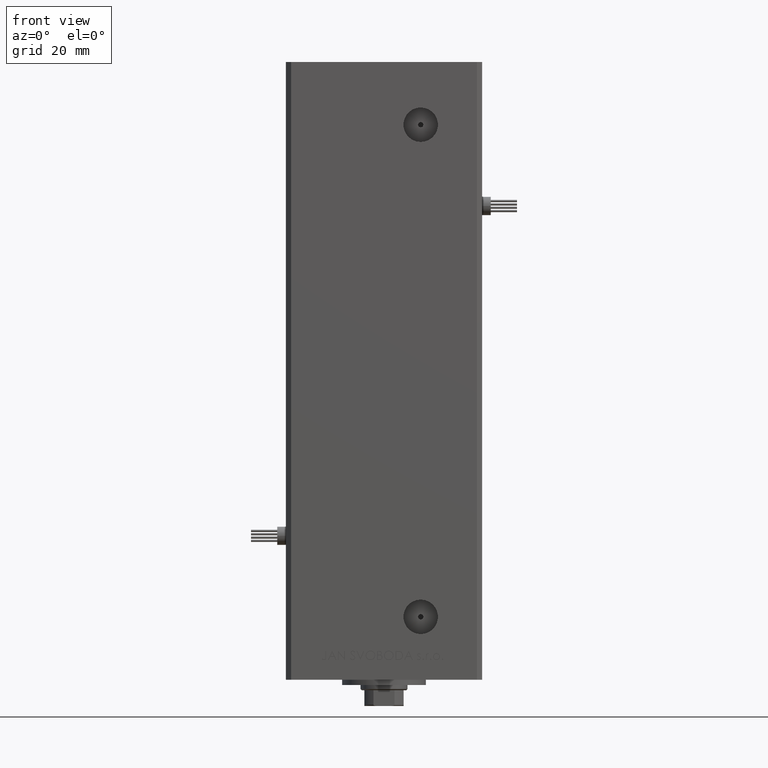
[diagram: clean part render]
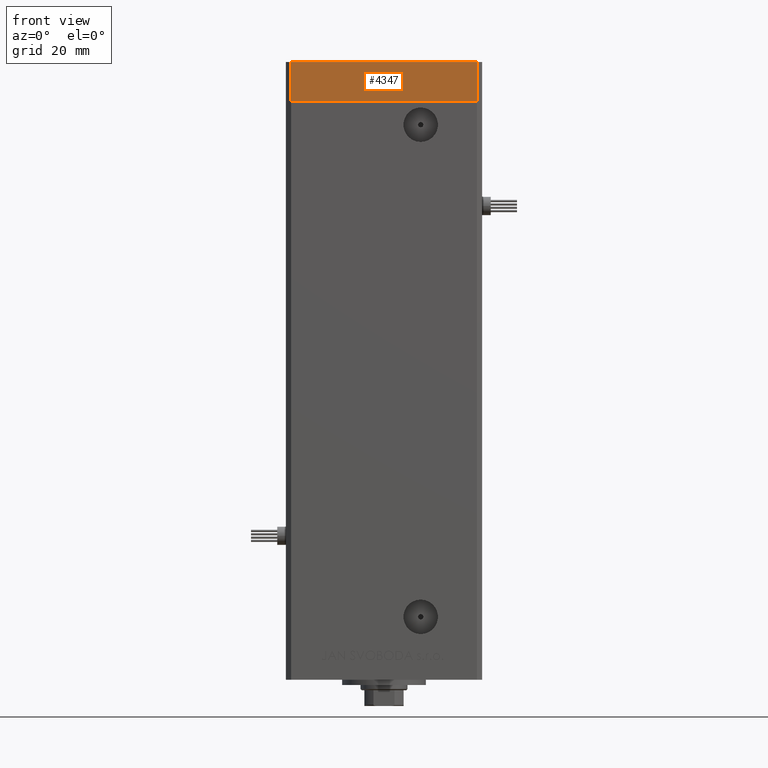
[diagram: same view with one face highlighted and labeled with its STEP entity id]
A machine part, front view. The second image highlights one B-rep face of the part: STEP entity #4347.
In plain terms, the highlighted planar face has unit normal (0, -1, 0).
Its self-contained STEP definition (entity closure, byte-faithful):
#3597 = EDGE_CURVE ( 'NONE', #50137, #19110, #33595, .T. ) ;
#4347 = ADVANCED_FACE ( 'NONE', ( #35753 ), #23215, .T. ) ;
#5008 = CARTESIAN_POINT ( 'NONE',  ( -35.49999999999998579, -32.50000000000001421, -15.00000000000000000 ) ) ;
#5056 = CARTESIAN_POINT ( 'NONE',  ( -35.49999999999998579, -32.50000000000001421, -15.00000000000000000 ) ) ;
#6940 = EDGE_LOOP ( 'NONE', ( #50473, #11890, #9169, #8636 ) ) ;
#7211 = DIRECTION ( 'NONE',  ( 9.773090005503140331E-17, -1.000000000000000000, 0.000000000000000000 ) ) ;
#8636 = ORIENTED_EDGE ( 'NONE', *, *, #3597, .T. ) ;
#9169 = ORIENTED_EDGE ( 'NONE', *, *, #29105, .T. ) ;
#9218 = VECTOR ( 'NONE', #29860, 1000.000000000000000 ) ;
#11890 = ORIENTED_EDGE ( 'NONE', *, *, #25095, .F. ) ;
#13592 = LINE ( 'NONE', #5056, #9218 ) ;
#18641 = VECTOR ( 'NONE', #20877, 1000.000000000000000 ) ;
#19110 = VERTEX_POINT ( 'NONE', #32257 ) ;
#20877 = DIRECTION ( 'NONE',  ( 1.000000000000000000, 9.773090005503140331E-17, 0.000000000000000000 ) ) ;
#21945 = VECTOR ( 'NONE', #38787, 1000.000000000000000 ) ;
#22554 = CARTESIAN_POINT ( 'NONE',  ( 35.50000000000000711, -32.50000000000000711, -15.00000000000000000 ) ) ;
#23215 = PLANE ( 'NONE',  #36783 ) ;
#25095 = EDGE_CURVE ( 'NONE', #49010, #36517, #41985, .T. ) ;
#25465 = CARTESIAN_POINT ( 'NONE',  ( -35.49999999999998579, -32.50000000000001421, 0.000000000000000000 ) ) ;
#26520 = CARTESIAN_POINT ( 'NONE',  ( -35.49999999999998579, -32.50000000000001421, -15.00000000000000000 ) ) ;
#27214 = EDGE_CURVE ( 'NONE', #36517, #19110, #41150, .T. ) ;
#28207 = VECTOR ( 'NONE', #30359, 1000.000000000000000 ) ;
#29105 = EDGE_CURVE ( 'NONE', #49010, #50137, #13592, .T. ) ;
#29860 = DIRECTION ( 'NONE',  ( 1.000000000000000000, 9.773090005503140331E-17, 0.000000000000000000 ) ) ;
#30359 = DIRECTION ( 'NONE',  ( 0.000000000000000000, 0.000000000000000000, 1.000000000000000000 ) ) ;
#31489 = CARTESIAN_POINT ( 'NONE',  ( -35.49999999999998579, -32.50000000000001421, -15.00000000000000000 ) ) ;
#32257 = CARTESIAN_POINT ( 'NONE',  ( 35.50000000000000711, -32.50000000000000711, 0.000000000000000000 ) ) ;
#33595 = LINE ( 'NONE', #42344, #28207 ) ;
#35753 = FACE_OUTER_BOUND ( 'NONE', #6940, .T. ) ;
#36517 = VERTEX_POINT ( 'NONE', #25465 ) ;
#36783 = AXIS2_PLACEMENT_3D ( 'NONE', #31489, #7211, #38954 ) ;
#38787 = DIRECTION ( 'NONE',  ( 0.000000000000000000, 0.000000000000000000, 1.000000000000000000 ) ) ;
#38954 = DIRECTION ( 'NONE',  ( 1.000000000000000000, 9.773090005503140331E-17, 0.000000000000000000 ) ) ;
#41150 = LINE ( 'NONE', #45908, #18641 ) ;
#41985 = LINE ( 'NONE', #26520, #21945 ) ;
#42344 = CARTESIAN_POINT ( 'NONE',  ( 35.50000000000000711, -32.50000000000000711, -15.00000000000000000 ) ) ;
#45908 = CARTESIAN_POINT ( 'NONE',  ( -35.49999999999998579, -32.50000000000001421, 0.000000000000000000 ) ) ;
#49010 = VERTEX_POINT ( 'NONE', #5008 ) ;
#50137 = VERTEX_POINT ( 'NONE', #22554 ) ;
#50473 = ORIENTED_EDGE ( 'NONE', *, *, #27214, .F. ) ;